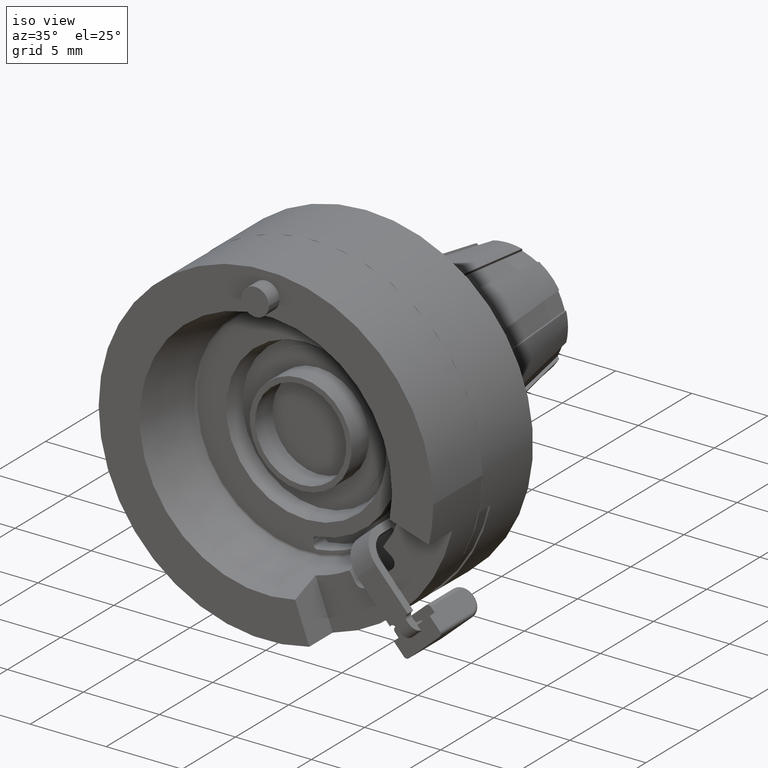
[diagram: clean part render]
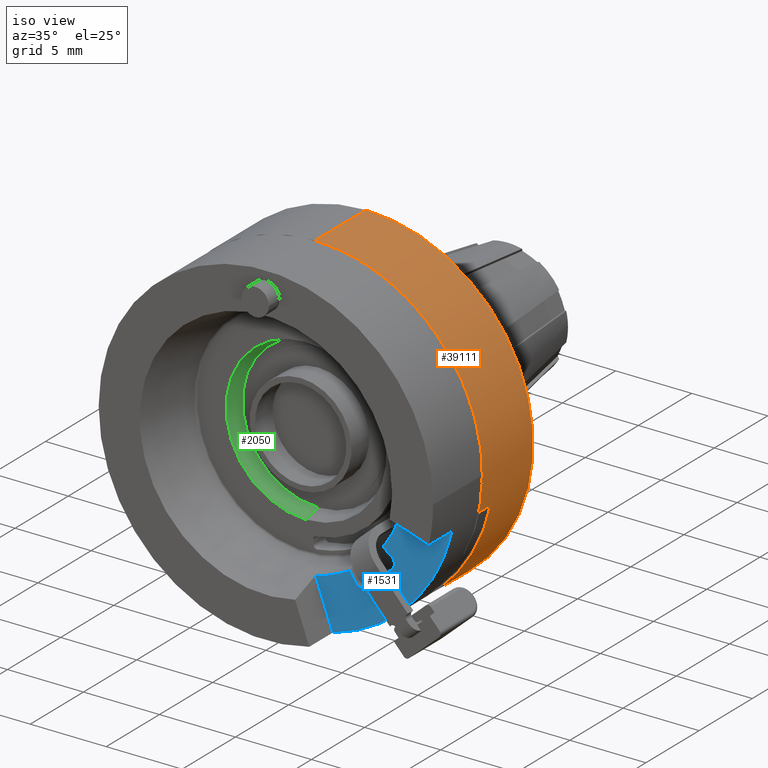
[diagram: same view with three faces highlighted in distinct colors, each labeled with its STEP entity id]
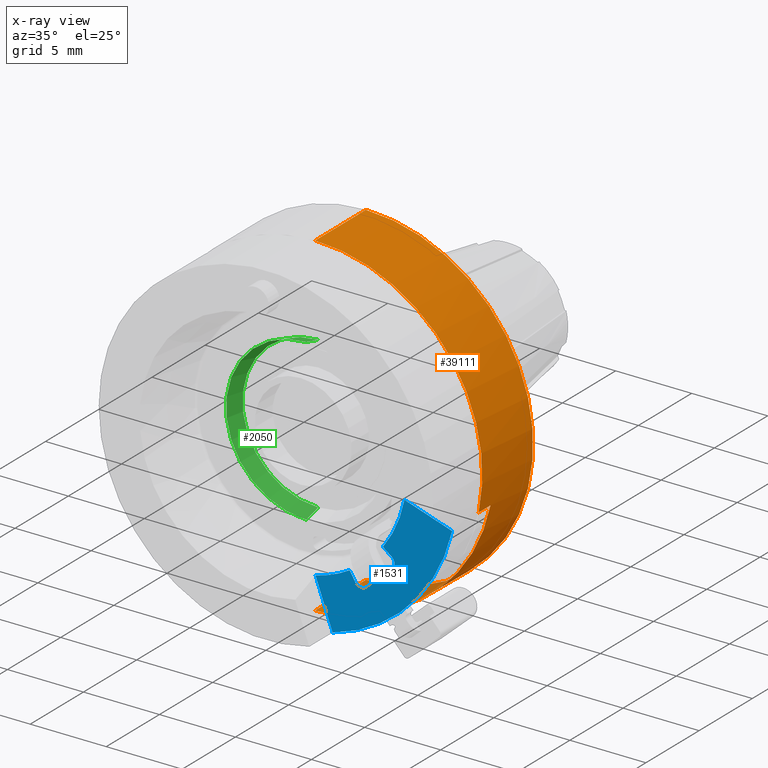
[diagram: x-ray of the same camera — body ghosted, the three highlighted faces saturated]
A machine part, iso view with three faces highlighted in distinct colors.
The next image is the same camera in x-ray (body ghosted, the three faces saturated) — at least one of them is partly hidden behind the body in this view.
Their STEP definitions:

[orange] entity #39111 — the highlighted cylindrical surface (partial cylindrical patch) has radius 11.0005 mm, axis along (0, -1, 0).
#38624=CARTESIAN_POINT('',(0.E0,4.771E0,0.E0));
#38625=DIRECTION('',(0.E0,-1.E0,0.E0));
#38626=DIRECTION('',(0.E0,0.E0,-1.E0));
#38627=AXIS2_PLACEMENT_3D('',#38624,#38625,#38626);
#38712=DIRECTION('',(0.E0,1.E0,0.E0));
#38713=VECTOR('',#38712,4.771E0);
#38714=CARTESIAN_POINT('',(0.E0,0.E0,-1.100054442E1));
#38715=LINE('',#38714,#38713);
#38716=DIRECTION('',(0.E0,1.E0,0.E0));
#38717=VECTOR('',#38716,4.771E0);
#38718=CARTESIAN_POINT('',(0.E0,0.E0,1.100054442E1));
#38719=LINE('',#38718,#38717);
#38725=CARTESIAN_POINT('',(0.E0,0.E0,0.E0));
#38726=DIRECTION('',(0.E0,-1.E0,0.E0));
#38727=DIRECTION('',(9.780151567904E-1,0.E0,-2.085338176131E-1));
#38728=AXIS2_PLACEMENT_3D('',#38725,#38726,#38727);
#38730=CARTESIAN_POINT('',(0.E0,0.E0,0.E0));
#38731=DIRECTION('',(0.E0,-1.E0,0.E0));
#38732=DIRECTION('',(0.E0,0.E0,-1.E0));
#38733=AXIS2_PLACEMENT_3D('',#38730,#38731,#38732);
#38735=CARTESIAN_POINT('',(0.E0,1.11599726E0,0.E0));
#38736=DIRECTION('',(0.E0,-1.E0,0.E0));
#38737=DIRECTION('',(2.762487283203E-1,0.E0,-9.610861772502E-1));
#38738=AXIS2_PLACEMENT_3D('',#38735,#38736,#38737);
#38757=DIRECTION('',(0.E0,-1.E0,0.E0));
#38758=VECTOR('',#38757,1.11599726E0);
#38759=CARTESIAN_POINT('',(3.038886406856E0,1.11599726E0,-1.057247118429E1));
#38760=LINE('',#38759,#38758);
#38793=DIRECTION('',(0.E0,-1.E0,0.E0));
#38794=VECTOR('',#38793,1.11599726E0);
#38795=CARTESIAN_POINT('',(1.075869917571E1,1.11599726E0,-2.293985523725E0));
#38796=LINE('',#38795,#38794);
#38850=CARTESIAN_POINT('',(0.E0,0.E0,-1.100054442E1));
#38851=CARTESIAN_POINT('',(0.E0,4.771E0,-1.100054442E1));
#38852=VERTEX_POINT('',#38850);
#38853=VERTEX_POINT('',#38851);
#38866=CARTESIAN_POINT('',(0.E0,0.E0,1.100054442E1));
#38867=CARTESIAN_POINT('',(0.E0,4.771E0,1.100054442E1));
#38868=VERTEX_POINT('',#38866);
#38869=VERTEX_POINT('',#38867);
#38878=CARTESIAN_POINT('',(3.038886406856E0,0.E0,-1.057247118429E1));
#38879=VERTEX_POINT('',#38878);
#38880=CARTESIAN_POINT('',(1.075869917571E1,0.E0,-2.293985523725E0));
#38881=VERTEX_POINT('',#38880);
#38882=CARTESIAN_POINT('',(3.038886406856E0,1.11599726E0,-1.057247118429E1));
#38883=CARTESIAN_POINT('',(1.075869917571E1,1.11599726E0,-2.293985523725E0));
#38884=VERTEX_POINT('',#38882);
#38885=VERTEX_POINT('',#38883);
#39091=CARTESIAN_POINT('',(0.E0,6.435110917128E0,0.E0));
#39092=DIRECTION('',(0.E0,-1.E0,0.E0));
#39093=DIRECTION('',(0.E0,0.E0,1.E0));
#39094=AXIS2_PLACEMENT_3D('',#39091,#39092,#39093);
#39095=CYLINDRICAL_SURFACE('',#39094,1.100054442E1);
#39097=ORIENTED_EDGE('',*,*,#39096,.T.);
#39099=ORIENTED_EDGE('',*,*,#39098,.T.);
#39101=ORIENTED_EDGE('',*,*,#39100,.T.);
#39102=ORIENTED_EDGE('',*,*,#39084,.T.);
#39103=ORIENTED_EDGE('',*,*,#39018,.F.);
#39104=ORIENTED_EDGE('',*,*,#39081,.F.);
#39106=ORIENTED_EDGE('',*,*,#39105,.T.);
#39108=ORIENTED_EDGE('',*,*,#39107,.F.);
#39109=EDGE_LOOP('',(#39097,#39099,#39101,#39102,#39103,#39104,#39106,#39108));
#39110=FACE_OUTER_BOUND('',#39109,.F.);
#39111=ADVANCED_FACE('',(#39110),#39095,.T.);
#38628=CIRCLE('',#38627,1.100054442E1);
#38729=CIRCLE('',#38728,1.100054442E1);
#38734=CIRCLE('',#38733,1.100054442E1);
#38739=CIRCLE('',#38738,1.100054442E1);
#39018=EDGE_CURVE('',#38853,#38869,#38628,.T.);
#39081=EDGE_CURVE('',#38852,#38853,#38715,.T.);
#39084=EDGE_CURVE('',#38868,#38869,#38719,.T.);
#39096=EDGE_CURVE('',#38884,#38885,#38739,.T.);
#39098=EDGE_CURVE('',#38885,#38881,#38796,.T.);
#39100=EDGE_CURVE('',#38881,#38868,#38729,.T.);
#39105=EDGE_CURVE('',#38852,#38879,#38734,.T.);
#39107=EDGE_CURVE('',#38884,#38879,#38760,.T.);

[blue] entity #1531 — the highlighted planar face has unit normal (0, -1, 0).
#179=CARTESIAN_POINT('',(0.E0,2.2E0,0.E0));
#180=DIRECTION('',(0.E0,-1.E0,0.E0));
#181=DIRECTION('',(7.986355100473E-1,0.E0,-6.018150231520E-1));
#182=AXIS2_PLACEMENT_3D('',#179,#180,#181);
#184=DIRECTION('',(-9.510565162952E-1,0.E0,3.090169943749E-1));
#185=VECTOR('',#184,3.302098158705E0);
#186=CARTESIAN_POINT('',(1.071609986928E1,2.2E0,-2.482982801302E0));
#187=LINE('',#186,#185);
#188=CARTESIAN_POINT('',(0.E0,2.2E0,0.E0));
#189=DIRECTION('',(0.E0,1.E0,0.E0));
#190=DIRECTION('',(9.741908972075E-1,0.E0,-2.257257092093E-1));
#191=AXIS2_PLACEMENT_3D('',#188,#189,#190);
#193=DIRECTION('',(3.420201433257E-1,0.E0,-9.396926207859E-1));
#194=VECTOR('',#193,3.302098158705E0);
#195=CARTESIAN_POINT('',(1.726072641804E0,2.2E0,-7.519959787849E0));
#196=LINE('',#195,#194);
#197=CARTESIAN_POINT('',(0.E0,2.2E0,0.E0));
#198=DIRECTION('',(0.E0,-1.E0,0.E0));
#199=DIRECTION('',(2.237146014121E-1,0.E0,-9.746546963489E-1));
#200=AXIS2_PLACEMENT_3D('',#197,#198,#199);
#202=CARTESIAN_POINT('',(4.750421306711E0,2.2E0,-6.977389524646E0));
#203=DIRECTION('',(0.E0,1.E0,0.E0));
#204=DIRECTION('',(6.691306063589E-1,0.E0,-7.431448254774E-1));
#205=AXIS2_PLACEMENT_3D('',#202,#203,#204);
#207=CARTESIAN_POINT('',(6.442612415709E0,2.2E0,-5.453733806379E0));
#208=DIRECTION('',(0.E0,1.E0,0.E0));
#209=DIRECTION('',(6.018150231521E-1,0.E0,7.986355100473E-1));
#210=AXIS2_PLACEMENT_3D('',#207,#208,#209);
#222=DIRECTION('',(7.986355100473E-1,0.E0,-6.018150231521E-1));
#223=VECTOR('',#222,7.119262129562E-1);
#224=CARTESIAN_POINT('',(6.161881683022E0,2.2E0,-4.643310898495E0));
#225=LINE('',#224,#223);
#243=DIRECTION('',(-7.431448254774E-1,0.E0,-6.691306063589E-1));
#244=VECTOR('',#243,2.277067741017E0);
#245=CARTESIAN_POINT('',(6.762647239971E0,2.2E0,-5.809168487386E0));
#246=LINE('',#245,#244);
#316=DIRECTION('',(-5.150380749101E-1,0.E0,8.571673007021E-1));
#317=VECTOR('',#316,7.119262129562E-1);
#318=CARTESIAN_POINT('',(4.340451438591E0,2.2E0,-7.223724273386E0));
#319=LINE('',#318,#317);
#1243=CARTESIAN_POINT('',(6.161881683022E0,2.2E0,-4.643310898495E0));
#1244=CARTESIAN_POINT('',(7.575617898E0,2.2E0,-1.462578353168E0));
#1245=VERTEX_POINT('',#1243);
#1246=VERTEX_POINT('',#1244);
#1255=CARTESIAN_POINT('',(1.071609986928E1,2.2E0,-2.482982801302E0));
#1256=VERTEX_POINT('',#1255);
#1257=CARTESIAN_POINT('',(2.855456727319E0,2.2E0,-1.062291706070E1));
#1258=VERTEX_POINT('',#1257);
#1259=CARTESIAN_POINT('',(1.726072641804E0,2.2E0,-7.519959787849E0));
#1260=VERTEX_POINT('',#1259);
#1265=CARTESIAN_POINT('',(5.070456130973E0,2.2E0,-7.332824205652E0));
#1266=CARTESIAN_POINT('',(4.340451438591E0,2.2E0,-7.223724273386E0));
#1267=VERTEX_POINT('',#1265);
#1268=VERTEX_POINT('',#1266);
#1269=CARTESIAN_POINT('',(6.730451237222E0,2.2E0,-5.071758788828E0));
#1270=CARTESIAN_POINT('',(6.762647239971E0,2.2E0,-5.809168487386E0));
#1271=VERTEX_POINT('',#1269);
#1272=VERTEX_POINT('',#1270);
#1273=CARTESIAN_POINT('',(3.973782332392E0,2.2E0,-6.613484403128E0));
#1274=VERTEX_POINT('',#1273);
#1507=CARTESIAN_POINT('',(0.E0,2.2E0,0.E0));
#1508=DIRECTION('',(0.E0,-1.E0,0.E0));
#1509=DIRECTION('',(1.E0,0.E0,0.E0));
#1510=AXIS2_PLACEMENT_3D('',#1507,#1508,#1509);
#1511=PLANE('',#1510);
#1513=ORIENTED_EDGE('',*,*,#1512,.T.);
#1514=ORIENTED_EDGE('',*,*,#1317,.F.);
#1515=ORIENTED_EDGE('',*,*,#1340,.T.);
#1517=ORIENTED_EDGE('',*,*,#1516,.F.);
#1519=ORIENTED_EDGE('',*,*,#1518,.T.);
#1521=ORIENTED_EDGE('',*,*,#1520,.F.);
#1522=ORIENTED_EDGE('',*,*,#1497,.F.);
#1524=ORIENTED_EDGE('',*,*,#1523,.F.);
#1526=ORIENTED_EDGE('',*,*,#1525,.F.);
#1528=ORIENTED_EDGE('',*,*,#1527,.F.);
#1529=EDGE_LOOP('',(#1513,#1514,#1515,#1517,#1519,#1521,#1522,#1524,#1526,
#1528));
#1530=FACE_OUTER_BOUND('',#1529,.F.);
#1531=ADVANCED_FACE('',(#1530),#1511,.T.);
#183=CIRCLE('',#182,7.715511776652E0);
#192=CIRCLE('',#191,1.1E1);
#201=CIRCLE('',#200,7.715511776652E0);
#206=CIRCLE('',#205,4.7828454E-1);
#211=CIRCLE('',#210,4.7828454E-1);
#1317=EDGE_CURVE('',#1256,#1246,#187,.T.);
#1340=EDGE_CURVE('',#1256,#1258,#192,.T.);
#1497=EDGE_CURVE('',#1267,#1268,#206,.T.);
#1512=EDGE_CURVE('',#1245,#1246,#183,.T.);
#1516=EDGE_CURVE('',#1260,#1258,#196,.T.);
#1518=EDGE_CURVE('',#1260,#1274,#201,.T.);
#1520=EDGE_CURVE('',#1268,#1274,#319,.T.);
#1523=EDGE_CURVE('',#1272,#1267,#246,.T.);
#1525=EDGE_CURVE('',#1271,#1272,#211,.T.);
#1527=EDGE_CURVE('',#1245,#1271,#225,.T.);

[green] entity #2050 — the highlighted conical surface has half-angle 15 deg.
#306=CARTESIAN_POINT('',(0.E0,3.8E0,0.E0));
#307=DIRECTION('',(0.E0,-1.E0,0.E0));
#308=DIRECTION('',(0.E0,0.E0,1.E0));
#309=AXIS2_PLACEMENT_3D('',#306,#307,#308);
#684=DIRECTION('',(0.E0,-9.659258262891E-1,-2.588190451025E-1));
#685=VECTOR('',#684,1.156493001426E0);
#686=CARTESIAN_POINT('',(0.E0,4.917086458E0,-4.982130625E0));
#687=LINE('',#686,#685);
#693=DIRECTION('',(0.E0,-9.659258262891E-1,2.588190451025E-1));
#694=VECTOR('',#693,1.156493001426E0);
#695=CARTESIAN_POINT('',(0.E0,4.917086458E0,4.982130625E0));
#696=LINE('',#695,#694);
#697=CARTESIAN_POINT('',(0.E0,4.917086458E0,0.E0));
#698=DIRECTION('',(0.E0,-1.E0,0.E0));
#699=DIRECTION('',(0.E0,0.E0,1.E0));
#700=AXIS2_PLACEMENT_3D('',#697,#698,#699);
#1219=CARTESIAN_POINT('',(0.E0,4.917086458E0,4.982130625E0));
#1220=CARTESIAN_POINT('',(0.E0,4.917086458E0,-4.982130625E0));
#1221=VERTEX_POINT('',#1219);
#1222=VERTEX_POINT('',#1220);
#1227=CARTESIAN_POINT('',(0.E0,3.8E0,5.281453039297E0));
#1228=CARTESIAN_POINT('',(0.E0,3.8E0,-5.281453039297E0));
#1229=VERTEX_POINT('',#1227);
#1230=VERTEX_POINT('',#1228);
#2039=CARTESIAN_POINT('',(0.E0,4.358543229E0,0.E0));
#2040=DIRECTION('',(0.E0,-1.E0,0.E0));
#2041=DIRECTION('',(0.E0,0.E0,1.E0));
#2042=AXIS2_PLACEMENT_3D('',#2039,#2040,#2041);
#2043=CONICAL_SURFACE('',#2042,5.131791832148E0,1.5E1);
#2044=ORIENTED_EDGE('',*,*,#1639,.F.);
#2045=ORIENTED_EDGE('',*,*,#2034,.F.);
#2046=ORIENTED_EDGE('',*,*,#2003,.T.);
#2047=ORIENTED_EDGE('',*,*,#2031,.T.);
#2048=EDGE_LOOP('',(#2044,#2045,#2046,#2047));
#2049=FACE_OUTER_BOUND('',#2048,.F.);
#2050=ADVANCED_FACE('',(#2049),#2043,.F.);
#310=CIRCLE('',#309,5.281453039297E0);
#701=CIRCLE('',#700,4.982130625E0);
#1639=EDGE_CURVE('',#1229,#1230,#310,.T.);
#2003=EDGE_CURVE('',#1221,#1222,#701,.T.);
#2031=EDGE_CURVE('',#1222,#1230,#687,.T.);
#2034=EDGE_CURVE('',#1221,#1229,#696,.T.);